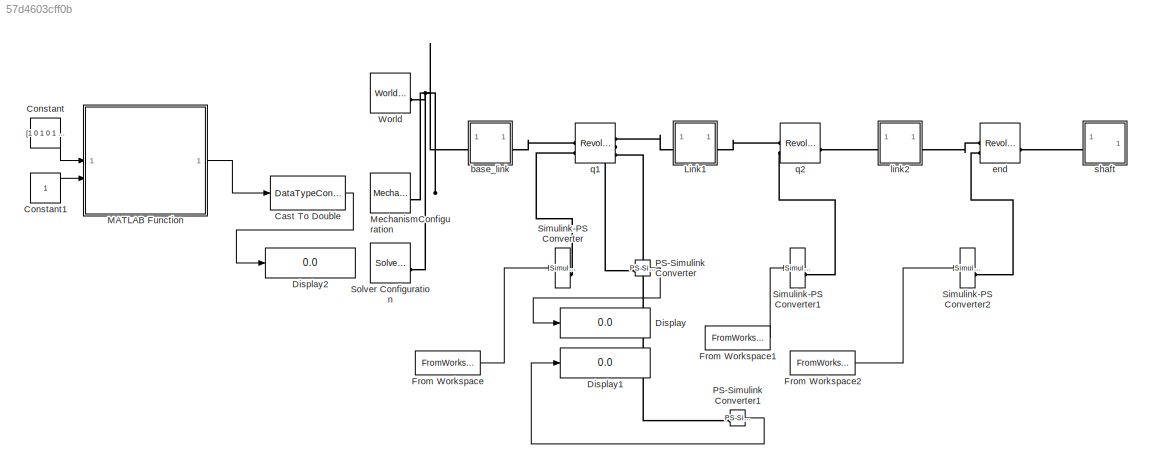
MODEL slx_57d4603cff0b
KIND model
CONFIG AbsTol = auto
CONFIG EnableMultiTasking = off
CONFIG FixedStep = 0.001
CONFIG MaxStep = auto
CONFIG MinStep = auto
CONFIG RelTol = 1e-3
CONFIG SampleTimeConstraint = Unconstrained
CONFIG SolverName = FixedStepAuto
CONFIG StartTime = 0.0
CONFIG StopTime = inf
BLOCK [DataTypeConversion] Cast To Double
  Commented = on
  OutDataTypeStr = double
  RndMeth = Floor
  SaturateOnIntegerOverflow = off
BLOCK [Constant] Constant
  Commented = on
  Value = [1 0 1 0 1 0 ]
BLOCK [Constant] Constant1
  Commented = on
BLOCK [Display] Display
  Decimation = 1
BLOCK [Display] Display1
  Decimation = 1
BLOCK [Display] Display2
  Commented = on
  Decimation = 1
BLOCK [FromWorkspace] From Workspace
  OutDataTypeStr = double
  OutputAfterFinalValue = Holding final value
  SampleTime = 0.01
  VariableName = q1_input_data
BLOCK [FromWorkspace] From Workspace1
  OutDataTypeStr = double
  OutputAfterFinalValue = Holding final value
  SampleTime = 0.01
  VariableName = q2_input_data
BLOCK [FromWorkspace] From Workspace2
  OutDataTypeStr = double
  OutputAfterFinalValue = Holding final value
  SampleTime = 0.01
  VariableName = q3_input_data
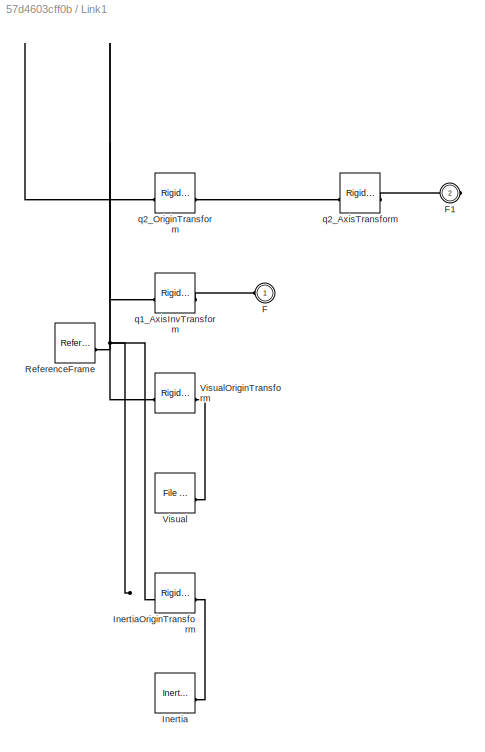
BLOCK [SubSystem] Link1
BLOCK [PMIOPort] Link1/F
  Side = Left
BLOCK [PMIOPort] Link1/F1
  Port = 2
  Side = Right
BLOCK [Reference] Link1/Inertia  REF=sm_lib/Body Elements/Inertia
  SourceBlock = sm_lib/Body Elements/Inertia
  SourceType = Inertia
BLOCK [Reference] Link1/InertiaOriginTransform  REF=sm_lib/Frames and
Transforms/Rigid
Transform
  SourceBlock = sm_lib/Frames and\nTransforms/Rigid\nTransform
  SourceType = Rigid\nTransform
BLOCK [Reference] Link1/ReferenceFrame  REF=sm_lib/Frames and
Transforms/Reference
Frame
  SourceBlock = sm_lib/Frames and\nTransforms/Reference\nFrame
  SourceType = Reference\nFrame
BLOCK [Reference] Link1/Visual  REF=sm_lib/Body Elements/File Solid
  SourceBlock = sm_lib/Body Elements/File Solid
  SourceType = File Solid
BLOCK [Reference] Link1/VisualOriginTransform  REF=sm_lib/Frames and
Transforms/Rigid
Transform
  SourceBlock = sm_lib/Frames and\nTransforms/Rigid\nTransform
  SourceType = Rigid\nTransform
BLOCK [Reference] Link1/q1_AxisInvTransform  REF=sm_lib/Frames and
Transforms/Rigid
Transform
  SourceBlock = sm_lib/Frames and\nTransforms/Rigid\nTransform
  SourceType = Rigid\nTransform
BLOCK [Reference] Link1/q2_AxisTransform  REF=sm_lib/Frames and
Transforms/Rigid
Transform
  SourceBlock = sm_lib/Frames and\nTransforms/Rigid\nTransform
  SourceType = Rigid\nTransform
BLOCK [Reference] Link1/q2_OriginTransform  REF=sm_lib/Frames and
Transforms/Rigid
Transform
  SourceBlock = sm_lib/Frames and\nTransforms/Rigid\nTransform
  SourceType = Rigid\nTransform
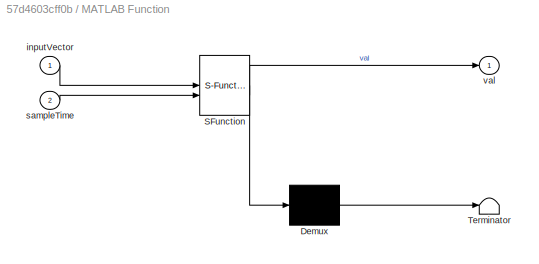
BLOCK [SubSystem] MATLAB Function
  Commented = on
  ErrorFcn = Stateflow.Translate.translate
  PermitHierarchicalResolution = ExplicitOnly
  SFBlockType = MATLAB Function
  TreatAsAtomicUnit = on
BLOCK [Demux] MATLAB Function/ Demux 
  Outputs = 1
BLOCK [S-Function] MATLAB Function/ SFunction 
  EnableBusSupport = on
  FunctionName = sf_sfun
  PortCounts = [2 2]
  SFcnIsStateOwnerBlock = off
  SFunctionDeploymentMode = off
  Tag = Stateflow S-Function 2
BLOCK [Terminator] MATLAB Function/ Terminator 
BLOCK [Inport] MATLAB Function/inputVector
BLOCK [Inport] MATLAB Function/sampleTime
  Port = 2
BLOCK [Outport] MATLAB Function/val
BLOCK [Reference] MechanismConfiguration  REF=sm_lib/Utilities/Mechanism
Configuration
  SourceBlock = sm_lib/Utilities/Mechanism\nConfiguration
  SourceType = Mechanism\nConfiguration
BLOCK [Reference] PS-Simulink Converter  REF=nesl_utility/PS-Simulink
Converter
  SourceBlock = nesl_utility/PS-Simulink\nConverter
  SourceType = PS-Simulink\nConverter
BLOCK [Reference] PS-Simulink Converter1  REF=nesl_utility/PS-Simulink
Converter
  SourceBlock = nesl_utility/PS-Simulink\nConverter
  SourceType = PS-Simulink\nConverter
BLOCK [Reference] Simulink-PS Converter  REF=nesl_utility/Simulink-PS
Converter
  SourceBlock = nesl_utility/Simulink-PS\nConverter
  SourceType = Simulink-PS\nConverter
BLOCK [Reference] Simulink-PS Converter1  REF=nesl_utility/Simulink-PS
Converter
  SourceBlock = nesl_utility/Simulink-PS\nConverter
  SourceType = Simulink-PS\nConverter
BLOCK [Reference] Simulink-PS Converter2  REF=nesl_utility/Simulink-PS
Converter
  SourceBlock = nesl_utility/Simulink-PS\nConverter
  SourceType = Simulink-PS\nConverter
BLOCK [Reference] Solver Configuration  REF=nesl_utility/Solver
Configuration
  SourceBlock = nesl_utility/Solver\nConfiguration
  SourceType = Solver\nConfiguration
BLOCK [Reference] World  REF=sm_lib/Frames and
Transforms/World Frame
  SourceBlock = sm_lib/Frames and\nTransforms/World Frame
  SourceType = World Frame
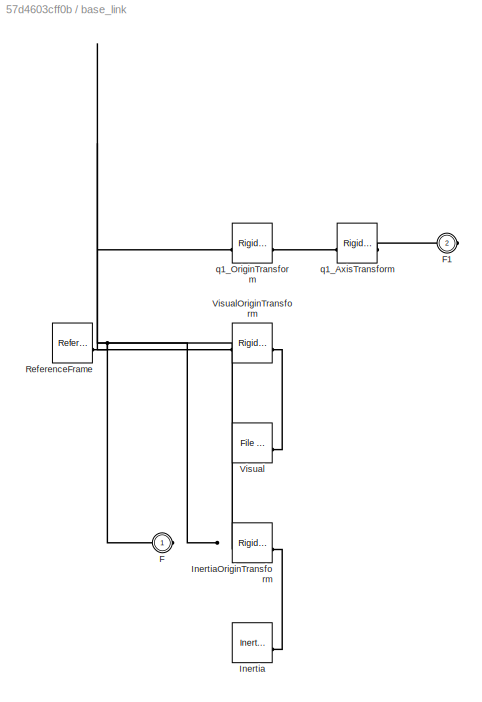
BLOCK [SubSystem] base_link
BLOCK [PMIOPort] base_link/F
  Side = Left
BLOCK [PMIOPort] base_link/F1
  Port = 2
  Side = Right
BLOCK [Reference] base_link/Inertia  REF=sm_lib/Body Elements/Inertia
  SourceBlock = sm_lib/Body Elements/Inertia
  SourceType = Inertia
BLOCK [Reference] base_link/InertiaOriginTransform  REF=sm_lib/Frames and
Transforms/Rigid
Transform
  SourceBlock = sm_lib/Frames and\nTransforms/Rigid\nTransform
  SourceType = Rigid\nTransform
BLOCK [Reference] base_link/ReferenceFrame  REF=sm_lib/Frames and
Transforms/Reference
Frame
  SourceBlock = sm_lib/Frames and\nTransforms/Reference\nFrame
  SourceType = Reference\nFrame
BLOCK [Reference] base_link/Visual  REF=sm_lib/Body Elements/File Solid
  SourceBlock = sm_lib/Body Elements/File Solid
  SourceType = File Solid
BLOCK [Reference] base_link/VisualOriginTransform  REF=sm_lib/Frames and
Transforms/Rigid
Transform
  SourceBlock = sm_lib/Frames and\nTransforms/Rigid\nTransform
  SourceType = Rigid\nTransform
BLOCK [Reference] base_link/q1_AxisTransform  REF=sm_lib/Frames and
Transforms/Rigid
Transform
  SourceBlock = sm_lib/Frames and\nTransforms/Rigid\nTransform
  SourceType = Rigid\nTransform
BLOCK [Reference] base_link/q1_OriginTransform  REF=sm_lib/Frames and
Transforms/Rigid
Transform
  SourceBlock = sm_lib/Frames and\nTransforms/Rigid\nTransform
  SourceType = Rigid\nTransform
BLOCK [Reference] end  REF=sm_lib/Joints/Revolute Joint
  SourceBlock = sm_lib/Joints/Revolute Joint
  SourceType = Revolute Joint
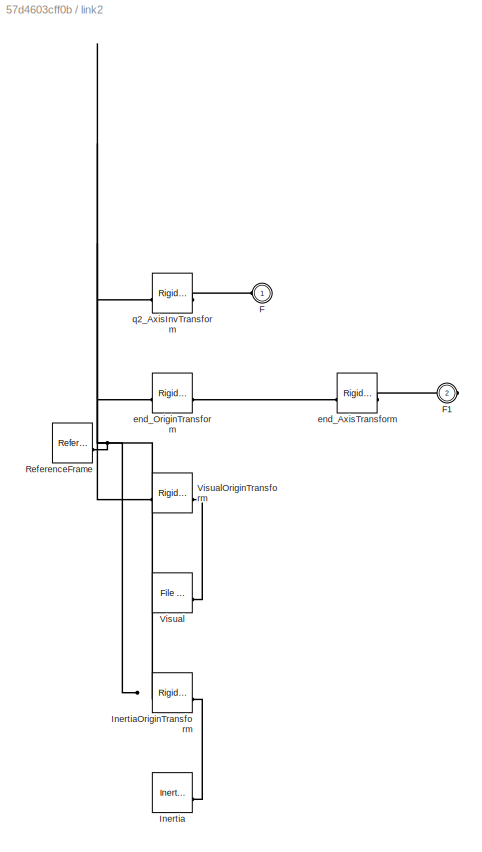
BLOCK [SubSystem] link2
BLOCK [PMIOPort] link2/F
  Side = Left
BLOCK [PMIOPort] link2/F1
  Port = 2
  Side = Right
BLOCK [Reference] link2/Inertia  REF=sm_lib/Body Elements/Inertia
  SourceBlock = sm_lib/Body Elements/Inertia
  SourceType = Inertia
BLOCK [Reference] link2/InertiaOriginTransform  REF=sm_lib/Frames and
Transforms/Rigid
Transform
  SourceBlock = sm_lib/Frames and\nTransforms/Rigid\nTransform
  SourceType = Rigid\nTransform
BLOCK [Reference] link2/ReferenceFrame  REF=sm_lib/Frames and
Transforms/Reference
Frame
  SourceBlock = sm_lib/Frames and\nTransforms/Reference\nFrame
  SourceType = Reference\nFrame
BLOCK [Reference] link2/Visual  REF=sm_lib/Body Elements/File Solid
  SourceBlock = sm_lib/Body Elements/File Solid
  SourceType = File Solid
BLOCK [Reference] link2/VisualOriginTransform  REF=sm_lib/Frames and
Transforms/Rigid
Transform
  SourceBlock = sm_lib/Frames and\nTransforms/Rigid\nTransform
  SourceType = Rigid\nTransform
BLOCK [Reference] link2/end_AxisTransform  REF=sm_lib/Frames and
Transforms/Rigid
Transform
  SourceBlock = sm_lib/Frames and\nTransforms/Rigid\nTransform
  SourceType = Rigid\nTransform
BLOCK [Reference] link2/end_OriginTransform  REF=sm_lib/Frames and
Transforms/Rigid
Transform
  SourceBlock = sm_lib/Frames and\nTransforms/Rigid\nTransform
  SourceType = Rigid\nTransform
BLOCK [Reference] link2/q2_AxisInvTransform  REF=sm_lib/Frames and
Transforms/Rigid
Transform
  SourceBlock = sm_lib/Frames and\nTransforms/Rigid\nTransform
  SourceType = Rigid\nTransform
BLOCK [Reference] q1  REF=sm_lib/Joints/Revolute Joint
  SourceBlock = sm_lib/Joints/Revolute Joint
  SourceType = Revolute Joint
BLOCK [Reference] q2  REF=sm_lib/Joints/Revolute Joint
  SourceBlock = sm_lib/Joints/Revolute Joint
  SourceType = Revolute Joint
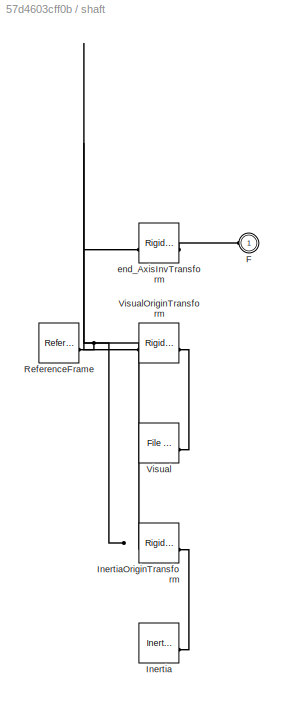
BLOCK [SubSystem] shaft
BLOCK [PMIOPort] shaft/F
  Side = Left
BLOCK [Reference] shaft/Inertia  REF=sm_lib/Body Elements/Inertia
  SourceBlock = sm_lib/Body Elements/Inertia
  SourceType = Inertia
BLOCK [Reference] shaft/InertiaOriginTransform  REF=sm_lib/Frames and
Transforms/Rigid
Transform
  SourceBlock = sm_lib/Frames and\nTransforms/Rigid\nTransform
  SourceType = Rigid\nTransform
BLOCK [Reference] shaft/ReferenceFrame  REF=sm_lib/Frames and
Transforms/Reference
Frame
  SourceBlock = sm_lib/Frames and\nTransforms/Reference\nFrame
  SourceType = Reference\nFrame
BLOCK [Reference] shaft/Visual  REF=sm_lib/Body Elements/File Solid
  SourceBlock = sm_lib/Body Elements/File Solid
  SourceType = File Solid
BLOCK [Reference] shaft/VisualOriginTransform  REF=sm_lib/Frames and
Transforms/Rigid
Transform
  SourceBlock = sm_lib/Frames and\nTransforms/Rigid\nTransform
  SourceType = Rigid\nTransform
BLOCK [Reference] shaft/end_AxisInvTransform  REF=sm_lib/Frames and
Transforms/Rigid
Transform
  SourceBlock = sm_lib/Frames and\nTransforms/Rigid\nTransform
  SourceType = Rigid\nTransform
LINE Cast To Double:1 -> Display2:1
LINE Constant1:1 -> MATLAB Function:2
LINE Constant:1 -> MATLAB Function:1
LINE From Workspace1:1 -> Simulink-PS Converter1:1
LINE From Workspace2:1 -> Simulink-PS Converter2:1
LINE From Workspace:1 -> Simulink-PS Converter:1
LINE MATLAB Function:1 -> Cast To Double:1
LINE PS-Simulink Converter1:1 -> Display1:1
LINE PS-Simulink Converter:1 -> Display:1
PLINE Link1/F1:RConn1 -- Link1/q2_AxisTransform:RConn1
PLINE Link1/F:RConn1 -- Link1/q1_AxisInvTransform:RConn1
PLINE Link1/Inertia:RConn1 -- Link1/InertiaOriginTransform:RConn1
PNET net1: Link1/InertiaOriginTransform:LConn1 -- Link1/ReferenceFrame:RConn1 -- Link1/VisualOriginTransform:LConn1 -- Link1/q1_AxisInvTransform:LConn1 -- Link1/q2_OriginTransform:LConn1
PLINE Link1/Visual:RConn1 -- Link1/VisualOriginTransform:RConn1
PLINE Link1/q2_AxisTransform:LConn1 -- Link1/q2_OriginTransform:RConn1
PLINE Link1:LConn1 -- q1:RConn1
PLINE Link1:RConn1 -- q2:LConn1
PNET net2: MechanismConfiguration:RConn1 -- Solver Configuration:RConn1 -- World:RConn1 -- base_link:LConn1
PLINE PS-Simulink Converter1:LConn1 -- q1:RConn3
PLINE PS-Simulink Converter:LConn1 -- q1:RConn2
PLINE Simulink-PS Converter1:RConn1 -- q2:LConn2
PLINE Simulink-PS Converter2:RConn1 -- end:LConn2
PLINE Simulink-PS Converter:RConn1 -- q1:LConn2
PLINE base_link/F1:RConn1 -- base_link/q1_AxisTransform:RConn1
PNET net3: base_link/F:RConn1 -- base_link/InertiaOriginTransform:LConn1 -- base_link/ReferenceFrame:RConn1 -- base_link/VisualOriginTransform:LConn1 -- base_link/q1_OriginTransform:LConn1
PLINE base_link/Inertia:RConn1 -- base_link/InertiaOriginTransform:RConn1
PLINE base_link/Visual:RConn1 -- base_link/VisualOriginTransform:RConn1
PLINE base_link/q1_AxisTransform:LConn1 -- base_link/q1_OriginTransform:RConn1
PLINE base_link:RConn1 -- q1:LConn1
PLINE end:LConn1 -- link2:RConn1
PLINE end:RConn1 -- shaft:LConn1
PLINE link2/F1:RConn1 -- link2/end_AxisTransform:RConn1
PLINE link2/F:RConn1 -- link2/q2_AxisInvTransform:RConn1
PLINE link2/Inertia:RConn1 -- link2/InertiaOriginTransform:RConn1
PNET net4: link2/InertiaOriginTransform:LConn1 -- link2/ReferenceFrame:RConn1 -- link2/VisualOriginTransform:LConn1 -- link2/end_OriginTransform:LConn1 -- link2/q2_AxisInvTransform:LConn1
PLINE link2/Visual:RConn1 -- link2/VisualOriginTransform:RConn1
PLINE link2/end_AxisTransform:LConn1 -- link2/end_OriginTransform:RConn1
PLINE link2:LConn1 -- q2:RConn1
PLINE shaft/F:RConn1 -- shaft/end_AxisInvTransform:RConn1
PLINE shaft/Inertia:RConn1 -- shaft/InertiaOriginTransform:RConn1
PNET net5: shaft/InertiaOriginTransform:LConn1 -- shaft/ReferenceFrame:RConn1 -- shaft/VisualOriginTransform:LConn1 -- shaft/end_AxisInvTransform:LConn1
PLINE shaft/Visual:RConn1 -- shaft/VisualOriginTransform:RConn1
note: PNET lines group multi-terminal physical nets as a canonical sorted terminal list (undirected conserving connections); 2-terminal nets keep the pairwise PLINE form
CHART MATLAB Function states=1 transitions=1
  STATE_LABEL 'eML_blk_kernel()'
  STATE_LABEL 'SCRIPT:\nfunction val = repeatingSequenceStair(inputVector, sampleTime)\n    % REPEATINGSEQUENCESTAIR Simulates a Repeating Sequence Stair block\n    %\n    % Inputs:\n    %   - inputVector: A vector defining the stair sequence.\n    %   - sampleTime: The time interval for each step in the sequence.\n    %\n    % Outputs:\n    %   - val: The current value of the sequence at the current time.\n    %\n    % Ex...<+670ch>'
CHART  states=0 transitions=0
